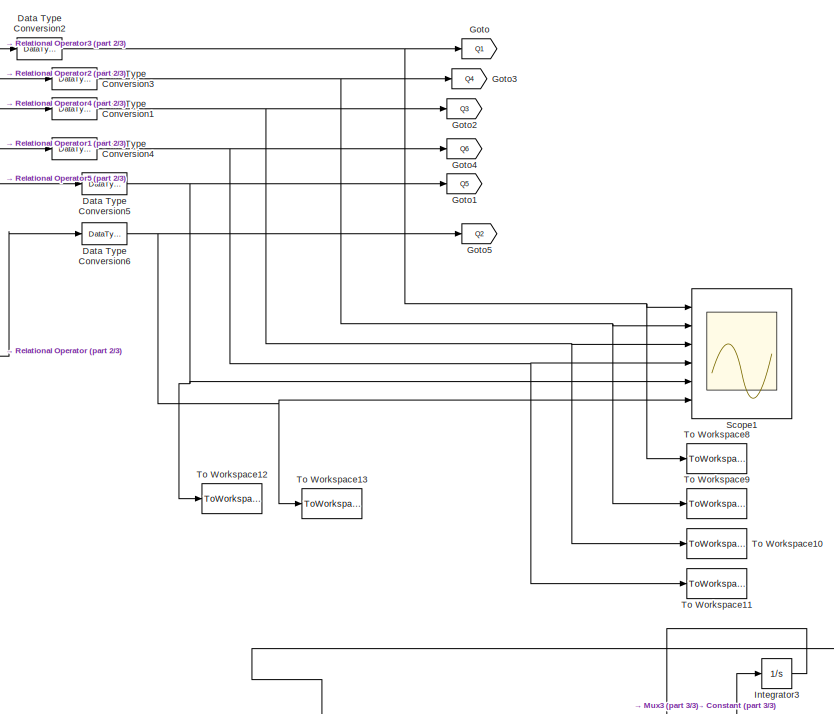
[diagram: root canvas - part 1/3, central region]
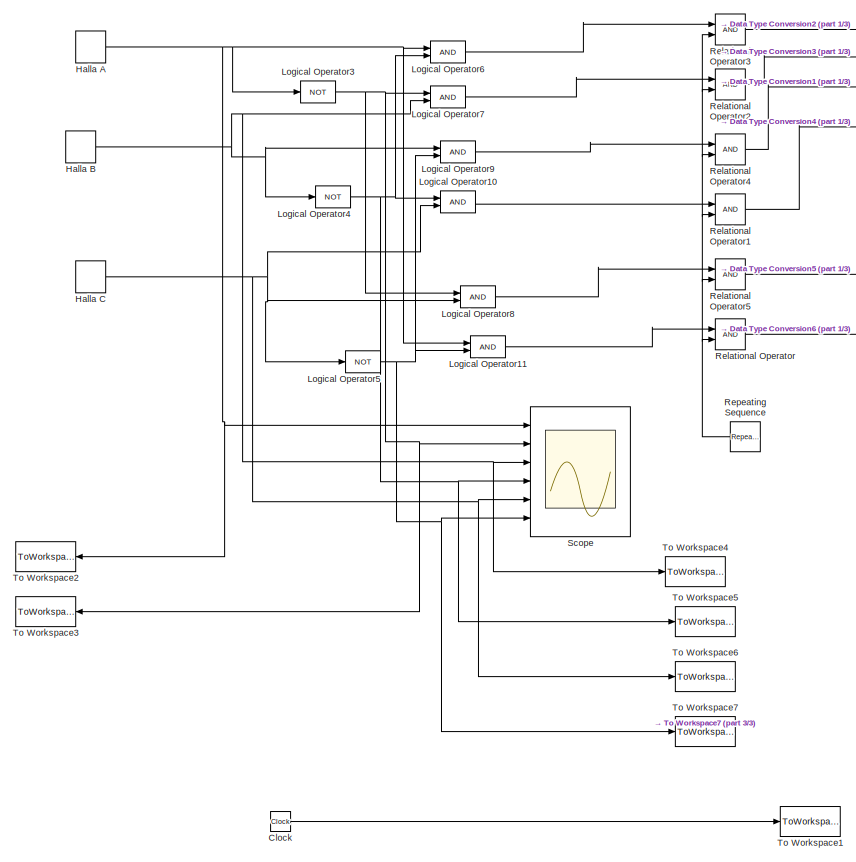
[diagram: root canvas - part 2/3, left side, full height]
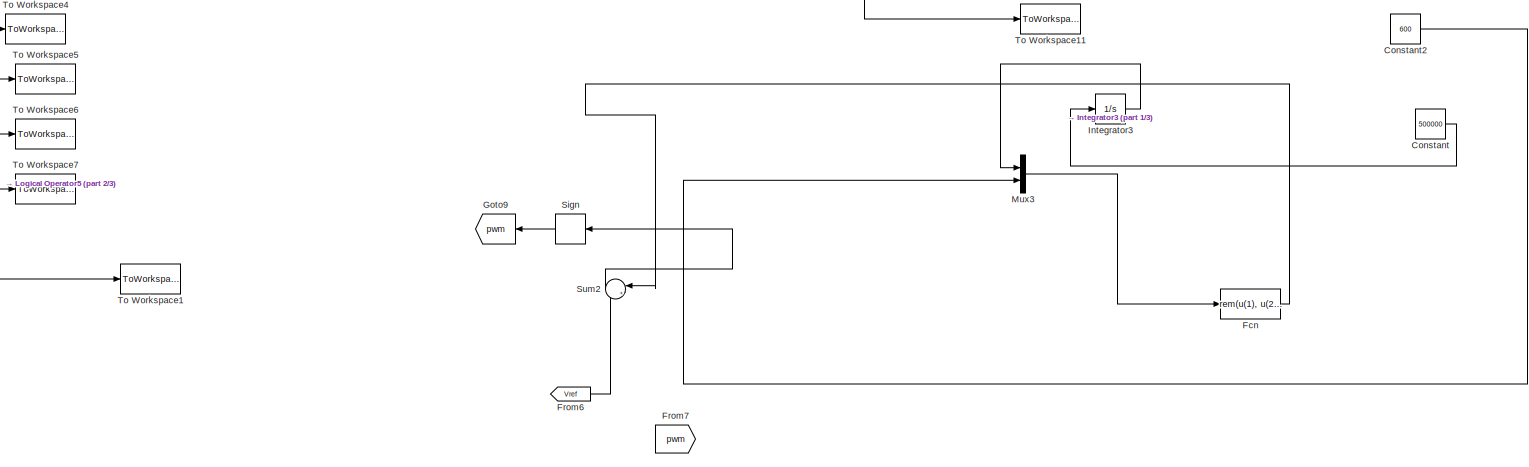
[diagram: root canvas - part 3/3, bottom center region]
MODEL slx_688d7e151ce9
KIND model
BLOCK [Clock] Clock
BLOCK [Constant] Constant
  Value = 500000
BLOCK [Constant] Constant2
  Value = 600
BLOCK [DataTypeConversion] Data Type Conversion1
  RndMeth = Floor
  SaturateOnIntegerOverflow = off
BLOCK [DataTypeConversion] Data Type Conversion2
  RndMeth = Floor
  SaturateOnIntegerOverflow = off
BLOCK [DataTypeConversion] Data Type Conversion3
  RndMeth = Floor
  SaturateOnIntegerOverflow = off
BLOCK [DataTypeConversion] Data Type Conversion4
  RndMeth = Floor
  SaturateOnIntegerOverflow = off
BLOCK [DataTypeConversion] Data Type Conversion5
  RndMeth = Floor
  SaturateOnIntegerOverflow = off
BLOCK [DataTypeConversion] Data Type Conversion6
  RndMeth = Floor
  SaturateOnIntegerOverflow = off
BLOCK [Fcn] Fcn
  Expr = rem(u(1), u(2))
BLOCK [From] From6
  CloseFcn = tagdialog Close
  GotoTag = Vref
BLOCK [From] From7
  GotoTag = pwm
BLOCK [Goto] Goto
  GotoTag = Q1
BLOCK [Goto] Goto1
  GotoTag = Q5
BLOCK [Goto] Goto2
  GotoTag = Q3
BLOCK [Goto] Goto3
  GotoTag = Q4
BLOCK [Goto] Goto4
  GotoTag = Q6
BLOCK [Goto] Goto5
  GotoTag = Q2
BLOCK [Goto] Goto9
  GotoTag = pwm
BLOCK [DiscretePulseGenerator] Halla A
  Period = 0.6
  Ports = [0, 1]
  PulseType = Time based
  PulseWidth = 50
BLOCK [DiscretePulseGenerator] Halla B
  Period = 0.6
  PhaseDelay = 0.2
  Ports = [0, 1]
  PulseType = Time based
  PulseWidth = 50
BLOCK [DiscretePulseGenerator] Halla C
  Period = 0.6
  PhaseDelay = -0.2
  Ports = [0, 1]
  PulseType = Time based
  PulseWidth = 50
BLOCK [Integrator] Integrator3
  Ports = [1, 1]
BLOCK [Logic] Logical Operator10
  AllPortsSameDT = off
  OutDataTypeStr = boolean
  Ports = [2, 1]
BLOCK [Logic] Logical Operator11
  AllPortsSameDT = off
  OutDataTypeStr = boolean
  Ports = [2, 1]
BLOCK [Logic] Logical Operator3
  AllPortsSameDT = off
  Operator = NOT
  OutDataTypeStr = boolean
  Ports = [1, 1]
BLOCK [Logic] Logical Operator4
  AllPortsSameDT = off
  Operator = NOT
  OutDataTypeStr = boolean
  Ports = [1, 1]
BLOCK [Logic] Logical Operator5
  AllPortsSameDT = off
  Operator = NOT
  OutDataTypeStr = boolean
  Ports = [1, 1]
BLOCK [Logic] Logical Operator6
  AllPortsSameDT = off
  OutDataTypeStr = boolean
  Ports = [2, 1]
BLOCK [Logic] Logical Operator7
  AllPortsSameDT = off
  OutDataTypeStr = boolean
  Ports = [2, 1]
BLOCK [Logic] Logical Operator8
  AllPortsSameDT = off
  OutDataTypeStr = boolean
  Ports = [2, 1]
BLOCK [Logic] Logical Operator9
  AllPortsSameDT = off
  OutDataTypeStr = boolean
  Ports = [2, 1]
BLOCK [Mux] Mux3
  DisplayOption = bar
  Inputs = 2
  Ports = [2, 1]
BLOCK [RelationalOperator] Relational Operator
  InputSameDT = off
  OutDataTypeStr = boolean
  Ports = [2, 1]
BLOCK [RelationalOperator] Relational Operator1
  InputSameDT = off
  OutDataTypeStr = boolean
  Ports = [2, 1]
BLOCK [RelationalOperator] Relational Operator2
  InputSameDT = off
  OutDataTypeStr = boolean
  Ports = [2, 1]
BLOCK [RelationalOperator] Relational Operator3
  InputSameDT = off
  OutDataTypeStr = boolean
  Ports = [2, 1]
BLOCK [RelationalOperator] Relational Operator4
  InputSameDT = off
  OutDataTypeStr = boolean
  Ports = [2, 1]
BLOCK [RelationalOperator] Relational Operator5
  InputSameDT = off
  OutDataTypeStr = boolean
  Ports = [2, 1]
BLOCK [Reference] Repeating Sequence  REF=simulink/Sources/Repeating
Sequence
  Ports = [0, 1]
  SourceBlock = simulink/Sources/Repeating\nSequence
  SourceType = Repeating table
  rep_seq_t = [0 12e-12]
  rep_seq_y = [0.0001 1.5]
BLOCK [Scope] Scope
  DataFormat = StructureWithTime
  Floating = off
  NumInputPorts = 6
  Ports = [6]
  SampleTime = 0
  ShowLegends = off
  YMax = 5~5~5~5~5~5
  YMin = -5~-5~-5~-5~-5~-5
BLOCK [Scope] Scope1
  DataFormat = StructureWithTime
  Floating = off
  NumInputPorts = 6
  Ports = [6]
  SampleTime = 0
  SaveName = ScopeData1
  ShowLegends = off
  YMax = 5~5~5~5~5~5
  YMin = -5~-5~-5~-5~-5~-5
BLOCK [Signum] Sign
BLOCK [Sum] Sum2
  IconShape = round
  InputSameDT = off
  Inputs = |+-
  OutDataTypeStr = Inherit: Inherit via internal rule
  Ports = [2, 1]
  SaturateOnIntegerOverflow = off
BLOCK [ToWorkspace] To Workspace1
  FixptAsFi = on
  MaxDataPoints = inf
  Ports = [1]
  SampleTime = -1
  SaveFormat = Structure With Time
  VariableName = Time
BLOCK [ToWorkspace] To Workspace10
  FixptAsFi = on
  MaxDataPoints = inf
  Ports = [1]
  SampleTime = -1
  SaveFormat = Structure With Time
  VariableName = Ster2
BLOCK [ToWorkspace] To Workspace11
  FixptAsFi = on
  MaxDataPoints = inf
  Ports = [1]
  SampleTime = -1
  SaveFormat = Structure With Time
  VariableName = Ster3
BLOCK [ToWorkspace] To Workspace12
  FixptAsFi = on
  MaxDataPoints = inf
  Ports = [1]
  SampleTime = -1
  SaveFormat = Structure With Time
  VariableName = Ster4
BLOCK [ToWorkspace] To Workspace13
  FixptAsFi = on
  MaxDataPoints = inf
  Ports = [1]
  SampleTime = -1
  SaveFormat = Structure With Time
  VariableName = Ster5
BLOCK [ToWorkspace] To Workspace2
  FixptAsFi = on
  MaxDataPoints = inf
  Ports = [1]
  SampleTime = -1
  SaveFormat = Structure With Time
  VariableName = Ha
BLOCK [ToWorkspace] To Workspace3
  FixptAsFi = on
  MaxDataPoints = inf
  Ports = [1]
  SampleTime = -1
  SaveFormat = Structure With Time
  VariableName = NHa
BLOCK [ToWorkspace] To Workspace4
  FixptAsFi = on
  MaxDataPoints = inf
  Ports = [1]
  SampleTime = -1
  SaveFormat = Structure With Time
  VariableName = Hb
BLOCK [ToWorkspace] To Workspace5
  FixptAsFi = on
  MaxDataPoints = inf
  Ports = [1]
  SampleTime = -1
  SaveFormat = Structure With Time
  VariableName = NHb
BLOCK [ToWorkspace] To Workspace6
  FixptAsFi = on
  MaxDataPoints = inf
  Ports = [1]
  SampleTime = -1
  SaveFormat = Structure With Time
  VariableName = Hc
BLOCK [ToWorkspace] To Workspace7
  FixptAsFi = on
  MaxDataPoints = inf
  Ports = [1]
  SampleTime = -1
  SaveFormat = Structure With Time
  VariableName = NHc
BLOCK [ToWorkspace] To Workspace8
  FixptAsFi = on
  MaxDataPoints = inf
  Ports = [1]
  SampleTime = -1
  SaveFormat = Structure With Time
  VariableName = Ster
BLOCK [ToWorkspace] To Workspace9
  FixptAsFi = on
  MaxDataPoints = inf
  Ports = [1]
  SampleTime = -1
  SaveFormat = Structure With Time
  VariableName = Ster1
LINE Clock:1 -> To Workspace1:1
LINE Constant2:1 -> Mux3:2
LINE Constant:1 -> Integrator3:1
NET Data Type Conversion1:1 -> Goto2:1, Scope1:3, To Workspace10:1
NET Data Type Conversion2:1 -> Goto:1, Scope1:1, To Workspace8:1
NET Data Type Conversion3:1 -> Goto3:1, Scope1:2, To Workspace9:1
NET Data Type Conversion4:1 -> Goto4:1, Scope1:4, To Workspace11:1
NET Data Type Conversion5:1 -> Goto1:1, Scope1:5, To Workspace12:1
NET Data Type Conversion6:1 -> Goto5:1, Scope1:6, To Workspace13:1
LINE Fcn:1 -> Sum2:1
LINE From6:1 -> Sum2:2
NET Halla A:1 -> Logical Operator11:1, Logical Operator3:1, Logical Operator6:1, Scope:1, To Workspace2:1
NET Halla B:1 -> Logical Operator4:1, Logical Operator7:2, Logical Operator9:1, Scope:3, To Workspace4:1
NET Halla C:1 -> Logical Operator10:2, Logical Operator5:1, Logical Operator8:2, Scope:5, To Workspace6:1
LINE Integrator3:1 -> Mux3:1
LINE Logical Operator10:1 -> Relational Operator1:1
LINE Logical Operator11:1 -> Relational Operator:1
NET Logical Operator3:1 -> Logical Operator7:1, Logical Operator8:1, Scope:2, To Workspace3:1
NET Logical Operator4:1 -> Logical Operator10:1, Logical Operator6:2, Scope:4, To Workspace5:1
NET Logical Operator5:1 -> Logical Operator11:2, Logical Operator9:2, Scope:6, To Workspace7:1
LINE Logical Operator6:1 -> Relational Operator3:1
LINE Logical Operator7:1 -> Relational Operator2:1
LINE Logical Operator8:1 -> Relational Operator5:1
LINE Logical Operator9:1 -> Relational Operator4:1
LINE Mux3:1 -> Fcn:1
LINE Relational Operator1:1 -> Data Type Conversion4:1
LINE Relational Operator2:1 -> Data Type Conversion3:1
LINE Relational Operator3:1 -> Data Type Conversion2:1
LINE Relational Operator4:1 -> Data Type Conversion1:1
LINE Relational Operator5:1 -> Data Type Conversion5:1
LINE Relational Operator:1 -> Data Type Conversion6:1
NET Repeating Sequence:1 -> Relational Operator1:2, Relational Operator2:2, Relational Operator3:2, Relational Operator4:2, Relational Operator5:2, Relational Operator:2
LINE Sign:1 -> Goto9:1
LINE Sum2:1 -> Sign:1
note: NET lines group one-source signal fan-out (src -> all destinations, sorted); 1:1 wires keep LINE
